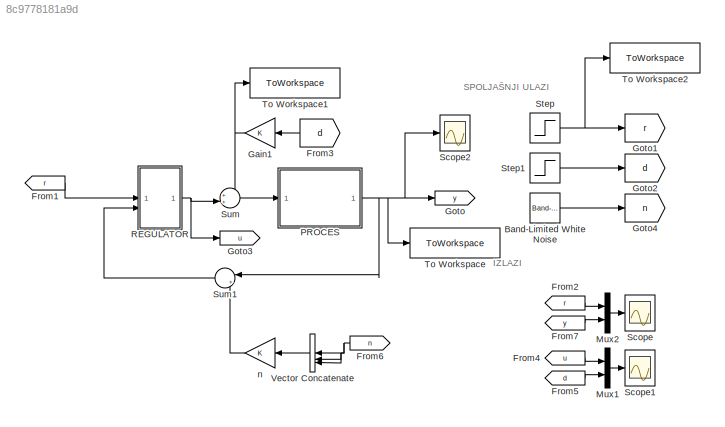
MODEL slx_8c9778181a9d
KIND model
CONFIG AbsTol = auto
CONFIG EnableMultiTasking = off
CONFIG FixedStep = auto
CONFIG MaxStep = auto
CONFIG MinStep = auto
CONFIG RelTol = 1e-3
CONFIG SampleTimeConstraint = Unconstrained
CONFIG SolverName = VariableStepAuto
CONFIG StartTime = 0.0
CONFIG StopTime = 20
BLOCK [Reference] Band-Limited White Noise  REF=simulink/Sources/Band-Limited
White Noise
  SourceBlock = simulink/Sources/Band-Limited\nWhite Noise
  SourceType = Band-Limited White Noise.
BLOCK [From] From1
  GotoTag = r
BLOCK [From] From2
  GotoTag = r
BLOCK [From] From3
  GotoTag = d
BLOCK [From] From4
  GotoTag = u
BLOCK [From] From5
  GotoTag = d
BLOCK [From] From6
  GotoTag = n
BLOCK [From] From7
  GotoTag = y
BLOCK [Gain] Gain1
BLOCK [Goto] Goto
  GotoTag = y
BLOCK [Goto] Goto1
  GotoTag = r
BLOCK [Goto] Goto2
  GotoTag = d
BLOCK [Goto] Goto3
  GotoTag = u
BLOCK [Goto] Goto4
  GotoTag = n
BLOCK [Mux] Mux1
  DisplayOption = bar
  Inputs = 2
BLOCK [Mux] Mux2
  DisplayOption = bar
  Inputs = 2
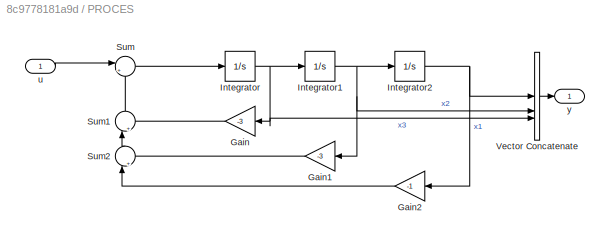
BLOCK [SubSystem] PROCES
BLOCK [Gain] PROCES/Gain
  Gain = -3
  NameLocation = top
BLOCK [Gain] PROCES/Gain1
  Gain = -3
  NameLocation = top
BLOCK [Gain] PROCES/Gain2
  Gain = -1
  NameLocation = top
BLOCK [Integrator] PROCES/Integrator
BLOCK [Integrator] PROCES/Integrator1
BLOCK [Integrator] PROCES/Integrator2
BLOCK [Sum] PROCES/Sum
  Inputs = |++
BLOCK [Sum] PROCES/Sum1
  Inputs = |++
  NameLocation = right
BLOCK [Sum] PROCES/Sum2
  Inputs = |++
  NameLocation = right
BLOCK [Concatenate] PROCES/Vector Concatenate
  NumInputs = 3
BLOCK [Inport] PROCES/u
BLOCK [Outport] PROCES/y
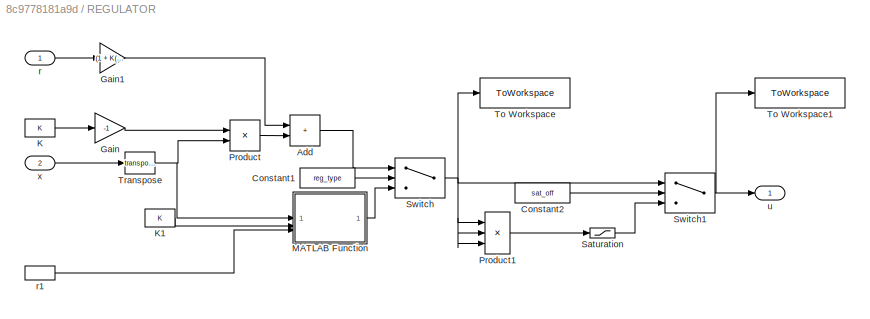
BLOCK [SubSystem] REGULATOR
BLOCK [Sum] REGULATOR/Add
  IconShape = rectangular
BLOCK [Constant] REGULATOR/Constant1
  Value = reg_type
BLOCK [Constant] REGULATOR/Constant2
  Value = sat_off
BLOCK [Gain] REGULATOR/Gain
  Gain = -1
BLOCK [Gain] REGULATOR/Gain1
  Gain = (1 + K(1,1))
BLOCK [Constant] REGULATOR/K
  Value = K
  VectorParams1D = off
BLOCK [Constant] REGULATOR/K1
  Value = K
  VectorParams1D = off
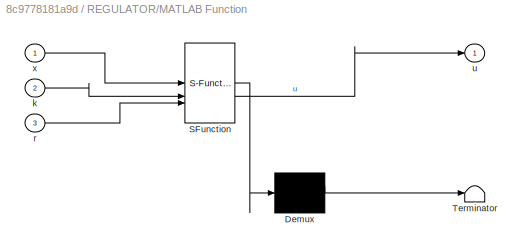
BLOCK [SubSystem] REGULATOR/MATLAB Function
  ErrorFcn = Stateflow.Translate.translate
  PermitHierarchicalResolution = ExplicitOnly
  SFBlockType = MATLAB Function
  SystemSampleTime = T
  TreatAsAtomicUnit = on
BLOCK [Demux] REGULATOR/MATLAB Function/ Demux 
  Outputs = 1
BLOCK [S-Function] REGULATOR/MATLAB Function/ SFunction 
  EnableBusSupport = off
  FunctionName = sf_sfun
  PortCounts = [3 2]
  SFcnIsStateOwnerBlock = off
  SFunctionDeploymentMode = off
  Tag = Stateflow S-Function 2
BLOCK [Terminator] REGULATOR/MATLAB Function/ Terminator 
BLOCK [Inport] REGULATOR/MATLAB Function/k
  Port = 2
BLOCK [Inport] REGULATOR/MATLAB Function/r
  Port = 3
BLOCK [Outport] REGULATOR/MATLAB Function/u
BLOCK [Inport] REGULATOR/MATLAB Function/x
BLOCK [Product] REGULATOR/Product
  Multiplication = Matrix(*)
BLOCK [Product] REGULATOR/Product1
  Inputs = 3
BLOCK [Saturate] REGULATOR/Saturation
  LowerLimit = -umax
  UpperLimit = umax
BLOCK [Switch] REGULATOR/Switch
  Criteria = u2 > Threshold
  InputSameDT = off
  SaturateOnIntegerOverflow = off
  Threshold = 0.5
BLOCK [Switch] REGULATOR/Switch1
  Criteria = u2 > Threshold
  InputSameDT = off
  SaturateOnIntegerOverflow = off
  Threshold = 0.5
BLOCK [ToWorkspace] REGULATOR/To Workspace
  FixptAsFi = on
  MaxDataPoints = inf
  SampleTime = -1
  VariableName = u
BLOCK [ToWorkspace] REGULATOR/To Workspace1
  FixptAsFi = on
  MaxDataPoints = inf
  SampleTime = -1
  VariableName = usat
BLOCK [Math] REGULATOR/Transpose
  Operator = transpose
BLOCK [Inport] REGULATOR/r
BLOCK [InportShadow] REGULATOR/r1
BLOCK [Outport] REGULATOR/u
BLOCK [Inport] REGULATOR/x
  Port = 2
BLOCK [Scope] Scope
  ActiveDisplayYMaximum = 1.12512732766752
  ActiveDisplayYMinimum = -0.12614594900768081
  Floating = off
  GraphicalSettings = {"Style":{"BackgroundColor":[0.12941176470588237,0.12941176470588237,0.12941176470588237],"AxesColor":[0.07058823529411765,0.07058823529411765,0.07058823529411765],"LabelsColor":[0.8509803921568627,0.8509803921568627,0.8509803921568627],"PreserveColors":false,"Visible":[true,true,true,true],"LineStyle":["-","-","-","-"],"LineWidth":[2,2,1.5,1.5],"BarWidth":[0.9,0.9,0.9,0.9],"LineColor":["auto","au...<+2602ch>
  MultipleDisplayCache = [{"MaxYLimMag":1.12512732766752,"MaxYLimReal":1.12512732766752,"MinYLimMag":0,"MinYLimReal":-0.12614594900768081,"PlotAsMagnitudePhase":false,"ShowGrid":true,"ShowLegend":true,"Title":"%<SignalLabel>","YLabel":""}]
  NumInputPorts = 1
  ScopeFrameLocation = window
  ShowLegend = on
  WasSavedAsWebScope = on
  WindowPosition = [198.000000,125.000000,1330.000000,691.000000,]
BLOCK [Scope] Scope1
  ActiveDisplayYMaximum = 1.0759380132508012
  ActiveDisplayYMinimum = 0.31655788074278879
  DataLoggingVariableName = ScopeData1
  Floating = off
  GraphicalSettings = {"Style":{"BackgroundColor":[0.12941176470588237,0.12941176470588237,0.12941176470588237],"AxesColor":[0.07058823529411765,0.07058823529411765,0.07058823529411765],"LabelsColor":[0.8509803921568627,0.8509803921568627,0.8509803921568627],"PreserveColors":false,"Visible":[true,false],"LineStyle":["-","-"],"LineWidth":[2,2],"BarWidth":[0.9,0.9],"LineColor":["auto","auto"],"LineFaceAlpha":[1,1],"LineE...<+2031ch>
  MultipleDisplayCache = [{"MaxYLimMag":1.0759380132508012,"MaxYLimReal":1.0759380132508012,"MinYLimMag":0.31655788074278879,"MinYLimReal":0.31655788074278879,"PlotAsMagnitudePhase":false,"ShowGrid":true,"ShowLegend":true,"Title":"%<SignalLabel>","YLabel":""}]
  NumInputPorts = 1
  ScopeFrameLocation = window
  ShowLegend = on
  WasSavedAsWebScope = on
  WindowPosition = [10.000000,61.000000,1920.000000,955.000000,]
BLOCK [Scope] Scope2
  ActiveDisplayYMaximum = 1.1349278750329523
  ActiveDisplayYMinimum = -0.21436210890346069
  DataLoggingVariableName = ScopeData2
  Floating = off
  GraphicalSettings = {"Style":{"BackgroundColor":[0.12941176470588237,0.12941176470588237,0.12941176470588237],"AxesColor":[0.07058823529411765,0.07058823529411765,0.07058823529411765],"LabelsColor":[0.8509803921568627,0.8509803921568627,0.8509803921568627],"PreserveColors":false,"Visible":[true,false,true],"LineStyle":["-","-","-"],"LineWidth":[2,2,1.5],"BarWidth":[0.9,0.9,0.9],"LineColor":["auto","auto","auto"],"Lin...<+2245ch>
  MultipleDisplayCache = [{"MaxYLimMag":1.1349278750329523,"MaxYLimReal":1.1349278750329523,"MinYLimMag":0,"MinYLimReal":-0.21436210890346069,"PlotAsMagnitudePhase":false,"ShowGrid":true,"ShowLegend":true,"Title":"%<SignalLabel>","YLabel":""}]
  NumInputPorts = 1
  ScopeFrameLocation = window
  ShowLegend = on
  WasSavedAsWebScope = on
  WindowPosition = [10.000000,61.000000,1920.000000,955.000000,]
BLOCK [Step] Step
  SampleTime = 0
BLOCK [Step] Step1
  After = 0
  SampleTime = 0
  Time = 5
BLOCK [Sum] Sum
  Inputs = ++|
BLOCK [Sum] Sum1
  Inputs = |++
BLOCK [ToWorkspace] To Workspace
  FixptAsFi = on
  MaxDataPoints = inf
  SampleTime = -1
  VariableName = y
BLOCK [ToWorkspace] To Workspace1
  FixptAsFi = on
  MaxDataPoints = inf
  SampleTime = -1
  VariableName = d
BLOCK [ToWorkspace] To Workspace2
  FixptAsFi = on
  MaxDataPoints = inf
  SampleTime = -1
  VariableName = r
BLOCK [Concatenate] Vector Concatenate
  NameLocation = top
  NumInputs = 3
BLOCK [Gain] n
ANNOTATION (root): IZLAZI
ANNOTATION (root): SPOLJAŠNJI ULAZI
LINE Band-Limited White Noise:1 -> Goto4:1
LINE From1:1 -> REGULATOR:1
LINE From2:1 -> Mux2:1
LINE From3:1 -> Gain1:1
LINE From4:1 -> Mux1:1
LINE From5:1 -> Mux1:2
NET From6:1 -> Vector Concatenate:1, Vector Concatenate:2, Vector Concatenate:3
LINE From7:1 -> Mux2:2
NET Gain1:1 -> Sum:1, To Workspace1:1
LINE Mux1:1 -> Scope1:1
LINE Mux2:1 -> Scope:1
LINE PROCES/Gain1:1 -> PROCES/Sum2:2
LINE PROCES/Gain2:1 -> PROCES/Sum2:1
LINE PROCES/Gain:1 -> PROCES/Sum1:2
NET PROCES/Integrator1:1 -> PROCES/Gain1:1, PROCES/Integrator2:1, PROCES/Vector Concatenate:2
NET PROCES/Integrator2:1 -> PROCES/Gain2:1, PROCES/Vector Concatenate:1
NET PROCES/Integrator:1 -> PROCES/Gain:1, PROCES/Integrator1:1, PROCES/Vector Concatenate:3
LINE PROCES/Sum1:1 -> PROCES/Sum:2
LINE PROCES/Sum2:1 -> PROCES/Sum1:1
LINE PROCES/Sum:1 -> PROCES/Integrator:1
LINE PROCES/Vector Concatenate:1 -> PROCES/y:1
LINE PROCES/u:1 -> PROCES/Sum:1
NET PROCES:1 -> Goto:1, Scope2:1, Sum1:1, To Workspace:1
LINE REGULATOR/Add:1 -> REGULATOR/Switch:1
LINE REGULATOR/Constant1:1 -> REGULATOR/Switch:2
LINE REGULATOR/Constant2:1 -> REGULATOR/Switch1:2
LINE REGULATOR/Gain1:1 -> REGULATOR/Add:1
LINE REGULATOR/Gain:1 -> REGULATOR/Product:1
LINE REGULATOR/K1:1 -> REGULATOR/MATLAB Function:2
LINE REGULATOR/K:1 -> REGULATOR/Gain:1
LINE REGULATOR/MATLAB Function:1 -> REGULATOR/Switch:3
LINE REGULATOR/Product1:1 -> REGULATOR/Saturation:1
LINE REGULATOR/Product:1 -> REGULATOR/Add:2
LINE REGULATOR/Saturation:1 -> REGULATOR/Switch1:3
NET REGULATOR/Switch1:1 -> REGULATOR/To Workspace1:1, REGULATOR/u:1
NET REGULATOR/Switch:1 -> REGULATOR/Product1:1, REGULATOR/Product1:2, REGULATOR/Product1:3, REGULATOR/Switch1:1, REGULATOR/To Workspace:1
NET REGULATOR/Transpose:1 -> REGULATOR/MATLAB Function:1, REGULATOR/Product:2
LINE REGULATOR/r1:1 -> REGULATOR/MATLAB Function:3
LINE REGULATOR/r:1 -> REGULATOR/Gain1:1
LINE REGULATOR/x:1 -> REGULATOR/Transpose:1
NET REGULATOR:1 -> Goto3:1, Sum:2
LINE Step1:1 -> Goto2:1
NET Step:1 -> Goto1:1, To Workspace2:1
LINE Sum1:1 -> REGULATOR:2
LINE Sum:1 -> PROCES:1
LINE Vector Concatenate:1 -> n:1
LINE n:1 -> Sum1:2
note: NET lines group one-source signal fan-out (src -> all destinations, sorted); 1:1 wires keep LINE
CHART REGULATOR/MATLAB Function states=1 transitions=1
  STATE_LABEL 'eML_blk_kernel()'
  STATE_LABEL 'SCRIPT:\nfunction u = fcn(x, k, r)\n\nu = -k*x + (1 + k(1, 1)) * r;\n'
CHART  states=0 transitions=0
